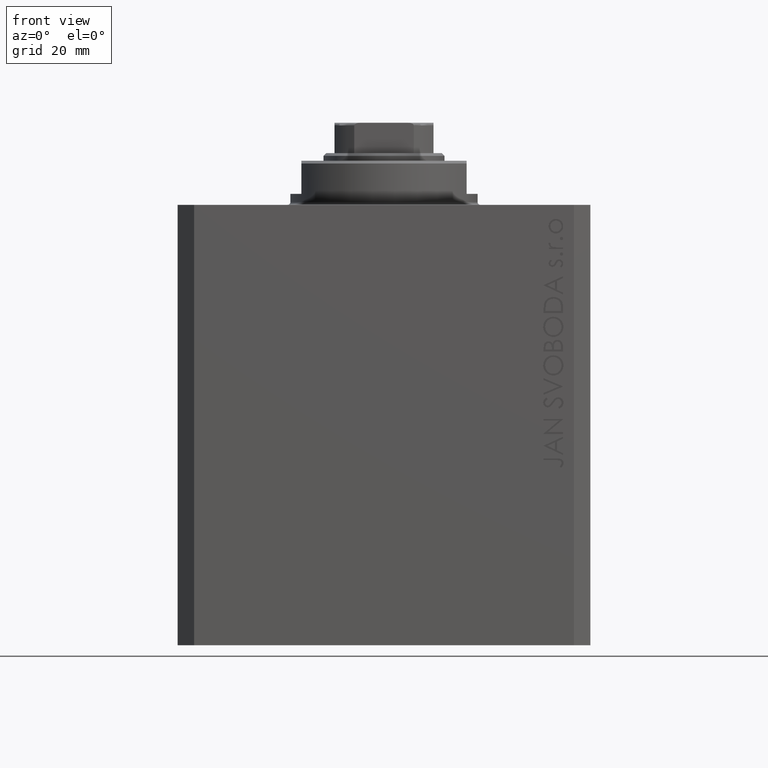
[diagram: clean part render]
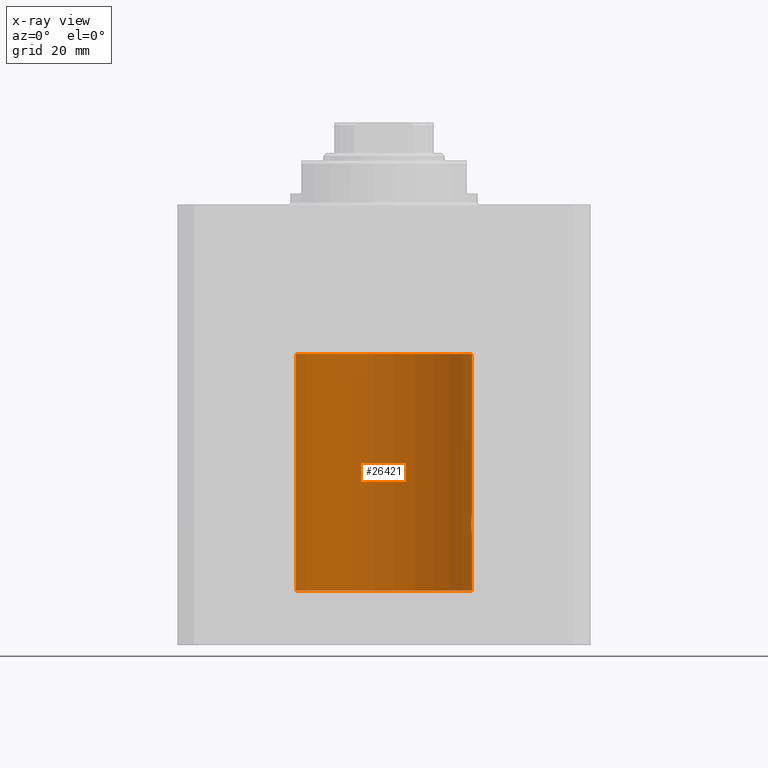
[diagram: x-ray — body ghosted, one internal face saturated and labeled with its STEP entity id]
A machine part, front view, then the same camera in x-ray: the body is ghosted and one INTERNAL B-rep face — a face not visible from any outside direction — is saturated and labeled: STEP entity #26421.
In plain terms, the highlighted cylindrical surface (partial cylindrical patch) has radius 16 mm, axis along (0, 0, 1).
Its self-contained STEP definition (entity closure, byte-faithful):
#123 = EDGE_CURVE ( 'NONE', #25302, #26512, #24545, .T. ) ;
#459 = EDGE_CURVE ( 'NONE', #23048, #2005, #27726, .T. ) ;
#1500 = CARTESIAN_POINT ( 'NONE',  ( 16.00000000000000000, 0.000000000000000000, -70.09999999999999432 ) ) ;
#1619 = CARTESIAN_POINT ( 'NONE',  ( 15.87450786638750699, 2.000000000000304201, -58.00000000000000000 ) ) ;
#1755 = ORIENTED_EDGE ( 'NONE', *, *, #459, .T. ) ;
#1837 = CARTESIAN_POINT ( 'NONE',  ( 15.90454527605182200, 1.748004143318092840, -59.00616739381551668 ) ) ;
#2005 = VERTEX_POINT ( 'NONE', #18979 ) ;
#2375 = CARTESIAN_POINT ( 'NONE',  ( 16.00000000000000000, 0.000000000000000000, -27.10000000000000142 ) ) ;
#2507 = CARTESIAN_POINT ( 'NONE',  ( 15.99999999999999645, 0.1323149458028785030, -60.00000000000003553 ) ) ;
#2639 = CARTESIAN_POINT ( 'NONE',  ( 15.87450786638750699, 2.000000000000304201, -58.00000000000000000 ) ) ;
#3193 = EDGE_CURVE ( 'NONE', #4633, #25302, #35090, .T. ) ;
#4633 = VERTEX_POINT ( 'NONE', #30623 ) ;
#5233 = CARTESIAN_POINT ( 'NONE',  ( 15.92096875784782739, 1.599058044721139105, -59.22922593843968286 ) ) ;
#5455 = CARTESIAN_POINT ( 'NONE',  ( 15.95380611548779015, 1.219810915946573759, -59.59032870701327766 ) ) ;
#5910 = CARTESIAN_POINT ( 'NONE',  ( 15.94550883254178686, 1.322613426523516988, -59.50588495029015235 ) ) ;
#6898 = EDGE_CURVE ( 'NONE', #15896, #4633, #21413, .T. ) ;
#8206 = AXIS2_PLACEMENT_3D ( 'NONE', #37153, #23802, #19739 ) ;
#8978 = CARTESIAN_POINT ( 'NONE',  ( 15.99207203775707065, 0.5197027266689117075, -56.06427960618061945 ) ) ;
#9050 = VERTEX_POINT ( 'NONE', #15637 ) ;
#9833 = ORIENTED_EDGE ( 'NONE', *, *, #44601, .F. ) ;
#10085 = CARTESIAN_POINT ( 'NONE',  ( -16.00000000000000000, 1.959434878635765131E-15, -70.09999999999999432 ) ) ;
#10113 = VECTOR ( 'NONE', #27042, 1000.000000000000000 ) ;
#10299 = LINE ( 'NONE', #34277, #10113 ) ;
#12591 = CARTESIAN_POINT ( 'NONE',  ( 15.96887171920781689, 1.003448269354840328, -56.26505182542073413 ) ) ;
#13051 = CARTESIAN_POINT ( 'NONE',  ( 15.88712192135845491, 1.897869642555083169, -57.35557946728214773 ) ) ;
#13212 = DIRECTION ( 'NONE',  ( 1.000000000000000000, 0.000000000000000000, 0.000000000000000000 ) ) ;
#13316 = EDGE_LOOP ( 'NONE', ( #9833, #13800, #31804, #24275, #38370, #27542, #1755 ) ) ;
#13800 = ORIENTED_EDGE ( 'NONE', *, *, #25878, .F. ) ;
#13908 = CIRCLE ( 'NONE', #31258, 16.00000000000000000 ) ;
#14955 = DIRECTION ( 'NONE',  ( -0.000000000000000000, -0.000000000000000000, 1.000000000000000000 ) ) ;
#15637 = CARTESIAN_POINT ( 'NONE',  ( -16.00000000000000000, 1.959434878635765131E-15, -70.09999999999999432 ) ) ;
#15896 = VERTEX_POINT ( 'NONE', #28195 ) ;
#16000 = CARTESIAN_POINT ( 'NONE',  ( 15.88249567060696243, 1.935716055827881199, -57.48027816021619429 ) ) ;
#16339 = DIRECTION ( 'NONE',  ( 1.000000000000000000, 0.000000000000000000, 0.000000000000000000 ) ) ;
#16461 = CARTESIAN_POINT ( 'NONE',  ( 15.89878974374255449, 1.797508500259983100, -57.11334888788567099 ) ) ;
#18709 = DIRECTION ( 'NONE',  ( -0.000000000000000000, -0.000000000000000000, 1.000000000000000000 ) ) ;
#18979 = CARTESIAN_POINT ( 'NONE',  ( -16.00000000000000000, 1.959434878635765131E-15, -27.10000000000000142 ) ) ;
#19165 = CARTESIAN_POINT ( 'NONE',  ( 15.92911104305801828, 1.507378839264609027, -56.67893664295412037 ) ) ;
#19433 = VECTOR ( 'NONE', #14955, 1000.000000000000000 ) ;
#19622 = CARTESIAN_POINT ( 'NONE',  ( 15.87450786638751055, 2.000000000000304201, -57.86943869497294202 ) ) ;
#19718 = CARTESIAN_POINT ( 'NONE',  ( 15.96893716441425859, 1.002454028984433698, -59.73556042441212810 ) ) ;
#19739 = DIRECTION ( 'NONE',  ( 1.000000000000000000, 0.000000000000000000, 0.000000000000000000 ) ) ;
#20433 = AXIS2_PLACEMENT_3D ( 'NONE', #23391, #33585, #13212 ) ;
#21413 = LINE ( 'NONE', #1500, #32199 ) ;
#22432 = CARTESIAN_POINT ( 'NONE',  ( 15.99211620657850830, 0.5182628822511372579, -59.93608344894171580 ) ) ;
#23048 = VERTEX_POINT ( 'NONE', #2375 ) ;
#23113 = CARTESIAN_POINT ( 'NONE',  ( 0.000000000000000000, 0.000000000000000000, -70.09999999999999432 ) ) ;
#23149 = CARTESIAN_POINT ( 'NONE',  ( 15.87450786638750699, 2.000000000000304201, -58.00000000000000000 ) ) ;
#23391 = CARTESIAN_POINT ( 'NONE',  ( 0.000000000000000000, 0.000000000000000000, -70.09999999999999432 ) ) ;
#23802 = DIRECTION ( 'NONE',  ( 0.000000000000000000, 0.000000000000000000, 1.000000000000000000 ) ) ;
#24275 = ORIENTED_EDGE ( 'NONE', *, *, #3193, .T. ) ;
#24545 = B_SPLINE_CURVE_WITH_KNOTS ( 'NONE', 3,
 ( #2639, #19622, #26177, #16000, #13051, #16461, #26629, #25959, #19165, #40184, #39956, #12591, #30252, #30024, #8978, #36579, #43118, #29575 ),
 .UNSPECIFIED., .F., .F.,
 ( 4, 2, 2, 2, 2, 2, 2, 2, 4 ),
 ( 0.003130250677538710252, 0.003521348247420683433, 0.003912445817302656614, 0.004303543387184629795, 0.004694640957066602976, 0.005085738526948576158, 0.005476836096830549339, 0.005867933666712522520, 0.006259031236594495701 ),
 .UNSPECIFIED. ) ;
#25302 = VERTEX_POINT ( 'NONE', #23149 ) ;
#25878 = EDGE_CURVE ( 'NONE', #15896, #9050, #13908, .T. ) ;
#25959 = CARTESIAN_POINT ( 'NONE',  ( 15.92095407913750726, 1.590131347295337116, -56.77998469042918828 ) ) ;
#26177 = CARTESIAN_POINT ( 'NONE',  ( 15.87617168140110380, 1.986916736634008140, -57.73680934434935352 ) ) ;
#26421 = ADVANCED_FACE ( 'NONE', ( #41027 ), #26572, .F. ) ;
#26512 = VERTEX_POINT ( 'NONE', #28128 ) ;
#26572 = CYLINDRICAL_SURFACE ( 'NONE', #20433, 16.00000000000000000 ) ;
#26629 = CARTESIAN_POINT ( 'NONE',  ( 15.90582997788426312, 1.734897462761025189, -56.99646332855052577 ) ) ;
#27042 = DIRECTION ( 'NONE',  ( -0.000000000000000000, -0.000000000000000000, 1.000000000000000000 ) ) ;
#27542 = ORIENTED_EDGE ( 'NONE', *, *, #43610, .T. ) ;
#27726 = CIRCLE ( 'NONE', #8206, 16.00000000000000000 ) ;
#28128 = CARTESIAN_POINT ( 'NONE',  ( 16.00000000000000000, -2.739635037742051899E-23, -56.00000000000000000 ) ) ;
#28195 = CARTESIAN_POINT ( 'NONE',  ( 16.00000000000000000, 0.000000000000000000, -70.09999999999999432 ) ) ;
#29212 = CARTESIAN_POINT ( 'NONE',  ( 15.97582125337101644, 0.8876008124445635694, -59.79704090617750722 ) ) ;
#29575 = CARTESIAN_POINT ( 'NONE',  ( 16.00000000000000000, -2.739635037742051899E-23, -56.00000000000000000 ) ) ;
#30024 = CARTESIAN_POINT ( 'NONE',  ( 15.98747899434752817, 0.6443623600228939319, -56.10211550510821610 ) ) ;
#30252 = CARTESIAN_POINT ( 'NONE',  ( 15.97588373855009536, 0.8864683965309536617, -56.20240655627671345 ) ) ;
#30623 = CARTESIAN_POINT ( 'NONE',  ( 16.00000000000000000, -1.269217749118193288E-15, -60.00000000000000711 ) ) ;
#31258 = AXIS2_PLACEMENT_3D ( 'NONE', #23113, #37139, #16339 ) ;
#31804 = ORIENTED_EDGE ( 'NONE', *, *, #6898, .T. ) ;
#32199 = VECTOR ( 'NONE', #18709, 1000.000000000000000 ) ;
#32628 = CARTESIAN_POINT ( 'NONE',  ( 15.98743782203464825, 0.6453927552190282801, -59.89754035852681824 ) ) ;
#32842 = CARTESIAN_POINT ( 'NONE',  ( 15.99836014839681830, 0.2623923436743428317, -59.98699919334817565 ) ) ;
#33585 = DIRECTION ( 'NONE',  ( -0.000000000000000000, -0.000000000000000000, 1.000000000000000000 ) ) ;
#34277 = CARTESIAN_POINT ( 'NONE',  ( 16.00000000000000000, 0.000000000000000000, -70.09999999999999432 ) ) ;
#35090 = B_SPLINE_CURVE_WITH_KNOTS ( 'NONE', 3,
 ( #36453, #2507, #32842, #22432, #32628, #29212, #19718, #5455, #5910, #5233, #1837, #39620, #42993, #1619 ),
 .UNSPECIFIED., .F., .F.,
 ( 4, 2, 2, 2, 2, 2, 4 ),
 ( 1.233258403080811936E-18, 0.0003912813346923395947, 0.0007825626693846778883, 0.001173844004077016561, 0.001565125338769355343, 0.002347688008154032689, 0.003130250677538710252 ),
 .UNSPECIFIED. ) ;
#36453 = CARTESIAN_POINT ( 'NONE',  ( 16.00000000000000000, -1.269217749118193288E-15, -60.00000000000000711 ) ) ;
#36579 = CARTESIAN_POINT ( 'NONE',  ( 15.99834953062734222, 0.2631943783489377742, -56.01308452963880313 ) ) ;
#37139 = DIRECTION ( 'NONE',  ( 0.000000000000000000, 0.000000000000000000, 1.000000000000000000 ) ) ;
#37153 = CARTESIAN_POINT ( 'NONE',  ( 0.000000000000000000, 0.000000000000000000, -27.10000000000000142 ) ) ;
#38370 = ORIENTED_EDGE ( 'NONE', *, *, #123, .T. ) ;
#39620 = CARTESIAN_POINT ( 'NONE',  ( 15.88135773388169447, 1.947448446433286851, -58.52472455433248655 ) ) ;
#39956 = CARTESIAN_POINT ( 'NONE',  ( 15.95379436193629985, 1.219925354616381297, -56.40980009844313514 ) ) ;
#40184 = CARTESIAN_POINT ( 'NONE',  ( 15.94566414814287469, 1.320819617421912229, -56.49240758272490837 ) ) ;
#41027 = FACE_OUTER_BOUND ( 'NONE', #13316, .T. ) ;
#41277 = LINE ( 'NONE', #10085, #19433 ) ;
#42993 = CARTESIAN_POINT ( 'NONE',  ( 15.87450786638751410, 2.000000000000305089, -58.26124530359818721 ) ) ;
#43118 = CARTESIAN_POINT ( 'NONE',  ( 16.00000000000000000, 0.1305637488590870032, -55.99999999999998579 ) ) ;
#43610 = EDGE_CURVE ( 'NONE', #26512, #23048, #10299, .T. ) ;
#44601 = EDGE_CURVE ( 'NONE', #9050, #2005, #41277, .T. ) ;